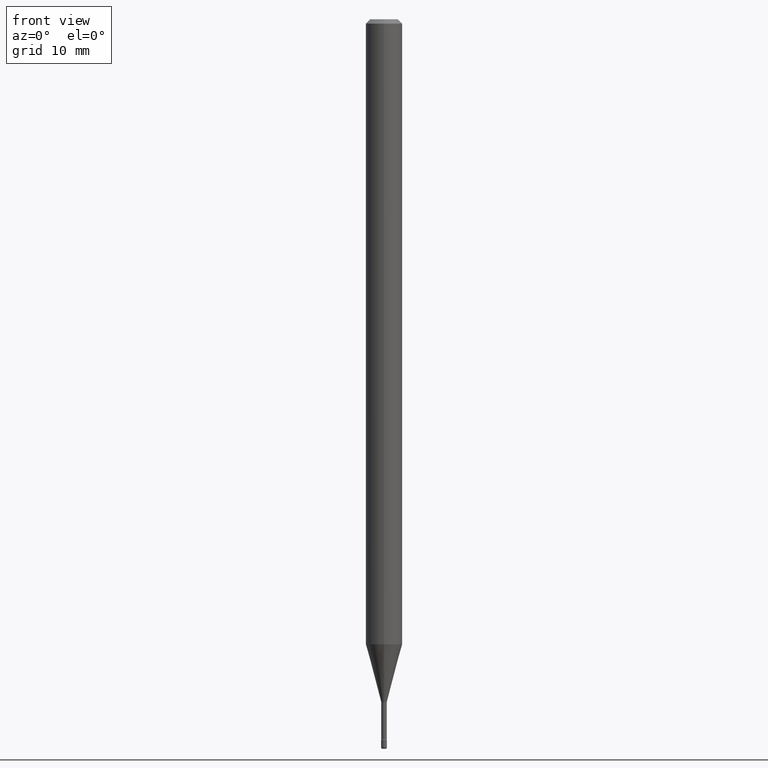
[diagram: clean part render]
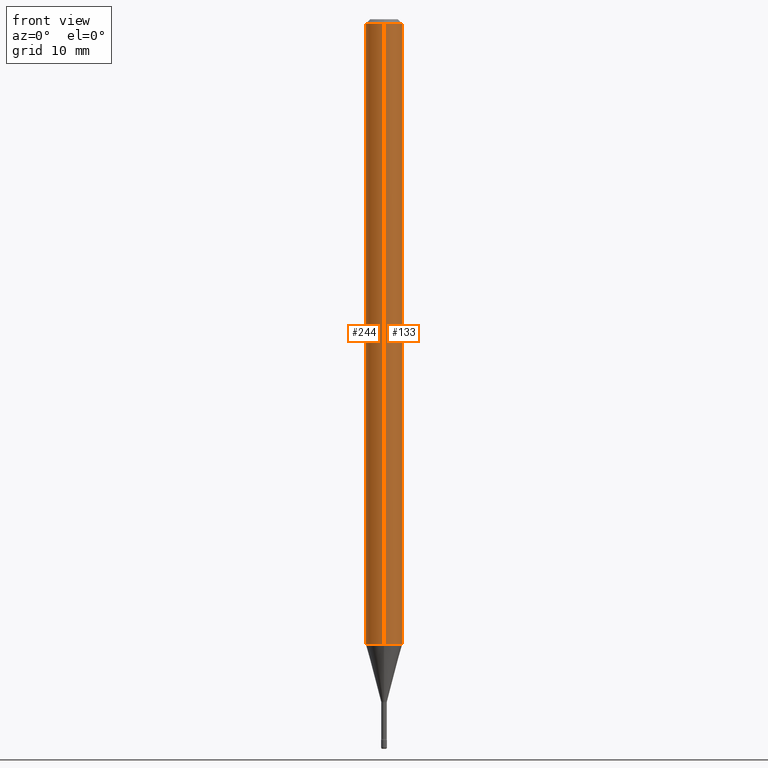
[diagram: same view with one multi-face feature highlighted, each face labeled with its STEP entity id]
A machine part, front view. The highlighted faces form ONE feature: a constant-radius fillet chain: 2 tangent blend faces with common blend radius 1.5875 mm. The faces share edges in the B-rep.
Their STEP definitions:
[1] entity #244 (Cylinder):
#6 = CARTESIAN_POINT ( 'NONE',  ( -4.364351673553916201E-16, -0.06250000000000000000, 6.962923296629373806E-16 ) ) ;
#19 = FACE_OUTER_BOUND ( 'NONE', #121, .T. ) ;
#26 = DIRECTION ( 'NONE',  ( -6.982962677686265922E-15, -1.000000000000000000, 4.370956789862821150E-15 ) ) ;
#46 = CARTESIAN_POINT ( 'NONE',  ( -4.364351673553393088E-16, -0.06250000000000748013, -2.141828102118092936 ) ) ;
#77 = EDGE_CURVE ( 'NONE', #148, #540, #344, .T. ) ;
#99 = CARTESIAN_POINT ( 'NONE',  ( -4.364351673553912750E-16, -0.06250000000000005551, -0.01499999999999981036 ) ) ;
#109 = DIRECTION ( 'NONE',  ( -6.982962677686265922E-15, -1.000000000000000000, 3.491502892347060290E-15 ) ) ;
#121 = EDGE_LOOP ( 'NONE', ( #456, #541, #446, #228 ) ) ;
#140 = LINE ( 'NONE', #542, #187 ) ;
#148 = VERTEX_POINT ( 'NONE', #318 ) ;
#171 = VERTEX_POINT ( 'NONE', #99 ) ;
#187 = VECTOR ( 'NONE', #504, 39.37007874015748143 ) ;
#188 = DIRECTION ( 'NONE',  ( -2.445453755453795863E-29, 3.491502892347059895E-15, 1.000000000000000000 ) ) ;
#228 = ORIENTED_EDGE ( 'NONE', *, *, #562, .F. ) ;
#231 = DIRECTION ( 'NONE',  ( -2.445453755453795863E-29, 3.491502892347059895E-15, 1.000000000000000000 ) ) ;
#233 = CARTESIAN_POINT ( 'NONE',  ( -1.169113584055446105E-44, 1.669184350826100908E-30, 4.780733988912460139E-16 ) ) ;
#238 = EDGE_CURVE ( 'NONE', #148, #251, #140, .T. ) ;
#243 = VECTOR ( 'NONE', #521, 39.37007874015748143 ) ;
#244 = ADVANCED_FACE ( 'NONE', ( #19 ), #445, .T. ) ;
#247 = DIRECTION ( 'NONE',  ( -2.445453755453795863E-29, 3.491502892347059895E-15, 1.000000000000000000 ) ) ;
#251 = VERTEX_POINT ( 'NONE', #447 ) ;
#261 = AXIS2_PLACEMENT_3D ( 'NONE', #233, #188, #109 ) ;
#266 = CARTESIAN_POINT ( 'NONE',  ( 5.237741575861167467E-29, -7.478199013455536656E-15, -2.141828102118093380 ) ) ;
#299 = AXIS2_PLACEMENT_3D ( 'NONE', #341, #247, #426 ) ;
#318 = CARTESIAN_POINT ( 'NONE',  ( 4.440892098501147796E-16, 0.06249999999999251293, -2.141828102118093380 ) ) ;
#341 = CARTESIAN_POINT ( 'NONE',  ( 3.668180633180700135E-31, -5.237254338520599679E-17, -0.01500000000000002720 ) ) ;
#344 = CIRCLE ( 'NONE', #356, 0.06250000000000000000 ) ;
#356 = AXIS2_PLACEMENT_3D ( 'NONE', #266, #231, #26 ) ;
#376 = LINE ( 'NONE', #6, #243 ) ;
#426 = DIRECTION ( 'NONE',  ( -6.982962677686265922E-15, -1.000000000000000000, 3.483106191921935554E-15 ) ) ;
#431 = CIRCLE ( 'NONE', #299, 0.06250000000000000000 ) ;
#445 = CYLINDRICAL_SURFACE ( 'NONE', #261, 0.06250000000000000000 ) ;
#446 = ORIENTED_EDGE ( 'NONE', *, *, #494, .T. ) ;
#447 = CARTESIAN_POINT ( 'NONE',  ( 4.440892098501153712E-16, 0.06249999999999995837, -0.01500000000000024578 ) ) ;
#456 = ORIENTED_EDGE ( 'NONE', *, *, #238, .F. ) ;
#494 = EDGE_CURVE ( 'NONE', #540, #171, #376, .T. ) ;
#504 = DIRECTION ( 'NONE',  ( -2.445453755453796143E-29, 3.491502892347059895E-15, 1.000000000000000000 ) ) ;
#521 = DIRECTION ( 'NONE',  ( -2.445453755453796143E-29, 3.491502892347059895E-15, 1.000000000000000000 ) ) ;
#540 = VERTEX_POINT ( 'NONE', #46 ) ;
#541 = ORIENTED_EDGE ( 'NONE', *, *, #77, .T. ) ;
#542 = CARTESIAN_POINT ( 'NONE',  ( 4.440892098500625669E-16, 0.06250000000000000000, 2.598544681195548444E-16 ) ) ;
#562 = EDGE_CURVE ( 'NONE', #251, #171, #431, .T. ) ;
[2] entity #133 (Cylinder):
#6 = CARTESIAN_POINT ( 'NONE',  ( -4.364351673553916201E-16, -0.06250000000000000000, 6.962923296629373806E-16 ) ) ;
#7 = ORIENTED_EDGE ( 'NONE', *, *, #40, .F. ) ;
#8 = CYLINDRICAL_SURFACE ( 'NONE', #407, 0.06250000000000000000 ) ;
#40 = EDGE_CURVE ( 'NONE', #171, #251, #278, .T. ) ;
#44 = AXIS2_PLACEMENT_3D ( 'NONE', #331, #374, #207 ) ;
#46 = CARTESIAN_POINT ( 'NONE',  ( -4.364351673553393088E-16, -0.06250000000000748013, -2.141828102118092936 ) ) ;
#99 = CARTESIAN_POINT ( 'NONE',  ( -4.364351673553912750E-16, -0.06250000000000005551, -0.01499999999999981036 ) ) ;
#133 = ADVANCED_FACE ( 'NONE', ( #216 ), #8, .T. ) ;
#140 = LINE ( 'NONE', #542, #187 ) ;
#148 = VERTEX_POINT ( 'NONE', #318 ) ;
#171 = VERTEX_POINT ( 'NONE', #99 ) ;
#175 = CARTESIAN_POINT ( 'NONE',  ( -1.169113584055446105E-44, 1.669184350826100908E-30, 4.780733988912460139E-16 ) ) ;
#187 = VECTOR ( 'NONE', #504, 39.37007874015748143 ) ;
#207 = DIRECTION ( 'NONE',  ( -6.982962677686265922E-15, -1.000000000000000000, 3.483106191921935554E-15 ) ) ;
#208 = ORIENTED_EDGE ( 'NONE', *, *, #494, .F. ) ;
#216 = FACE_OUTER_BOUND ( 'NONE', #249, .T. ) ;
#238 = EDGE_CURVE ( 'NONE', #148, #251, #140, .T. ) ;
#243 = VECTOR ( 'NONE', #521, 39.37007874015748143 ) ;
#249 = EDGE_LOOP ( 'NONE', ( #320, #443, #7, #208 ) ) ;
#251 = VERTEX_POINT ( 'NONE', #447 ) ;
#278 = CIRCLE ( 'NONE', #44, 0.06250000000000000000 ) ;
#297 = CIRCLE ( 'NONE', #471, 0.06250000000000000000 ) ;
#318 = CARTESIAN_POINT ( 'NONE',  ( 4.440892098501147796E-16, 0.06249999999999251293, -2.141828102118093380 ) ) ;
#320 = ORIENTED_EDGE ( 'NONE', *, *, #328, .T. ) ;
#328 = EDGE_CURVE ( 'NONE', #540, #148, #297, .T. ) ;
#331 = CARTESIAN_POINT ( 'NONE',  ( 3.668180633180700135E-31, -5.237254338520599679E-17, -0.01500000000000002720 ) ) ;
#342 = DIRECTION ( 'NONE',  ( -2.445453755453795863E-29, 3.491502892347059895E-15, 1.000000000000000000 ) ) ;
#374 = DIRECTION ( 'NONE',  ( -2.445453755453795863E-29, 3.491502892347059895E-15, 1.000000000000000000 ) ) ;
#376 = LINE ( 'NONE', #6, #243 ) ;
#407 = AXIS2_PLACEMENT_3D ( 'NONE', #175, #342, #538 ) ;
#443 = ORIENTED_EDGE ( 'NONE', *, *, #238, .T. ) ;
#447 = CARTESIAN_POINT ( 'NONE',  ( 4.440892098501153712E-16, 0.06249999999999995837, -0.01500000000000024578 ) ) ;
#471 = AXIS2_PLACEMENT_3D ( 'NONE', #564, #518, #519 ) ;
#494 = EDGE_CURVE ( 'NONE', #540, #171, #376, .T. ) ;
#504 = DIRECTION ( 'NONE',  ( -2.445453755453796143E-29, 3.491502892347059895E-15, 1.000000000000000000 ) ) ;
#518 = DIRECTION ( 'NONE',  ( -2.445453755453795863E-29, 3.491502892347059895E-15, 1.000000000000000000 ) ) ;
#519 = DIRECTION ( 'NONE',  ( -6.982962677686265922E-15, -1.000000000000000000, 4.370956789862821150E-15 ) ) ;
#521 = DIRECTION ( 'NONE',  ( -2.445453755453796143E-29, 3.491502892347059895E-15, 1.000000000000000000 ) ) ;
#538 = DIRECTION ( 'NONE',  ( -6.982962677686265922E-15, -1.000000000000000000, 3.491502892347060290E-15 ) ) ;
#540 = VERTEX_POINT ( 'NONE', #46 ) ;
#542 = CARTESIAN_POINT ( 'NONE',  ( 4.440892098500625669E-16, 0.06250000000000000000, 2.598544681195548444E-16 ) ) ;
#564 = CARTESIAN_POINT ( 'NONE',  ( 5.237741575861167467E-29, -7.478199013455536656E-15, -2.141828102118093380 ) ) ;